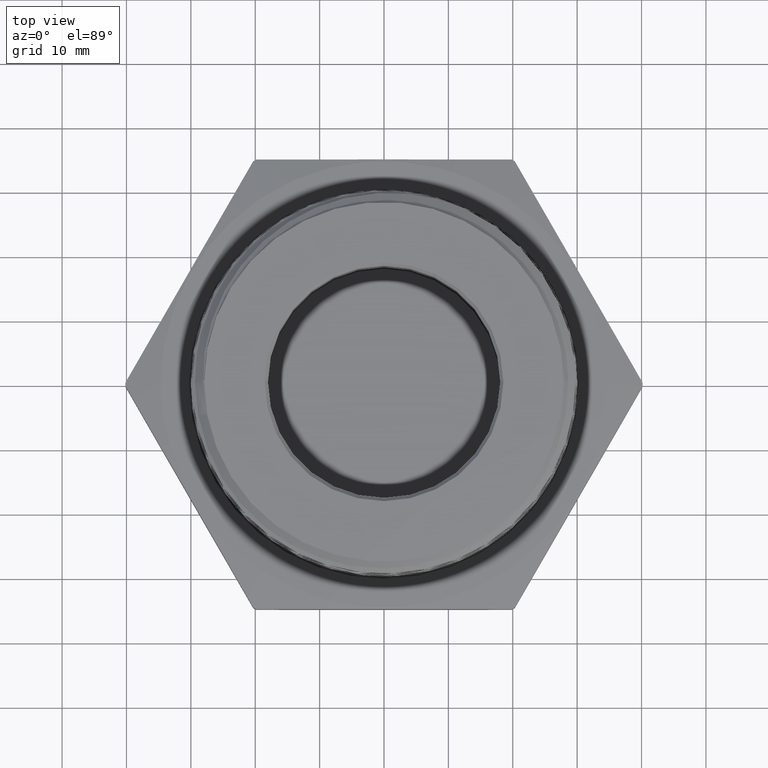
[diagram: clean part render]
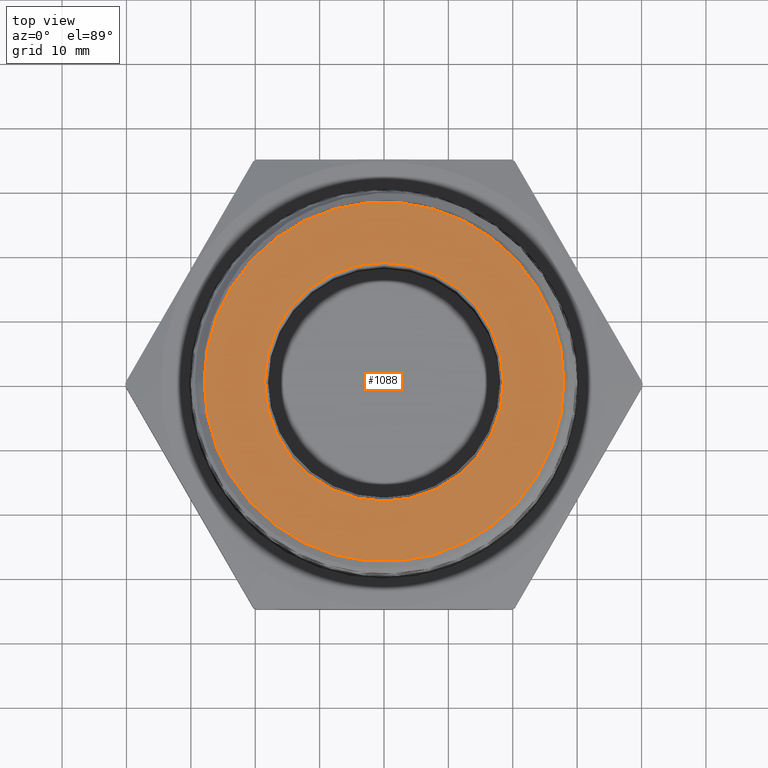
[diagram: same view with one face highlighted and labeled with its STEP entity id]
A machine part, top view. The second image highlights one B-rep face of the part: STEP entity #1088.
In plain terms, the highlighted planar face has unit normal (0, 0, 1).
Its self-contained STEP definition (entity closure, byte-faithful):
#248 = VERTEX_POINT ( 'NONE', #707 ) ;
#254 = VERTEX_POINT ( 'NONE', #713 ) ;
#277 = VERTEX_POINT ( 'NONE', #736 ) ;
#279 = VERTEX_POINT ( 'NONE', #738 ) ;
#409 = CIRCLE ( 'NONE', #1934, 0.7299999999999995400 ) ;
#449 = CIRCLE ( 'NONE', #1954, 1.099700000000000100 ) ;
#451 = CIRCLE ( 'NONE', #1955, 1.099700000000000100 ) ;
#707 = CARTESIAN_POINT ( 'NONE',  ( 1.099700000000000100, 1.381438622983947700E-016, 1.200000000000000000 ) ) ;
#713 = CARTESIAN_POINT ( 'NONE',  ( -1.099700000000000100, 0.0000000000000000000, 1.200000000000000000 ) ) ;
#736 = CARTESIAN_POINT ( 'NONE',  ( 0.7299999999999995400, 0.0000000000000000000, 1.200000000000000000 ) ) ;
#738 = CARTESIAN_POINT ( 'NONE',  ( -0.7299999999999995400, 8.939921633775674600E-017, 1.200000000000000000 ) ) ;
#953 = EDGE_CURVE ( 'NONE', #277, #279, #409, .T. ) ;
#989 = EDGE_CURVE ( 'NONE', #254, #248, #449, .T. ) ;
#994 = EDGE_CURVE ( 'NONE', #248, #254, #451, .T. ) ;
#1088 = ADVANCED_FACE ( 'NONE', ( #7244, #7251 ), #7083, .T. ) ;
#1449 = AXIS2_PLACEMENT_3D ( 'NONE', #7081, #7080, #7085 ) ;
#1460 = AXIS2_PLACEMENT_3D ( 'NONE', #5459, #5460, #5461 ) ;
#1866 = EDGE_CURVE ( 'NONE', #279, #277, #7279, .T. ) ;
#1934 = AXIS2_PLACEMENT_3D ( 'NONE', #7576, #7577, #7578 ) ;
#1954 = AXIS2_PLACEMENT_3D ( 'NONE', #1979, #1980, #1981 ) ;
#1955 = AXIS2_PLACEMENT_3D ( 'NONE', #2050, #2051, #2052 ) ;
#1979 = CARTESIAN_POINT ( 'NONE',  ( 0.0000000000000000000, 0.0000000000000000000, 1.200000000000000000 ) ) ;
#1980 = DIRECTION ( 'NONE',  ( -0.0000000000000000000, -0.0000000000000000000, -1.000000000000000000 ) ) ;
#1981 = DIRECTION ( 'NONE',  ( -1.000000000000000000, 0.0000000000000000000, 0.0000000000000000000 ) ) ;
#2050 = CARTESIAN_POINT ( 'NONE',  ( 0.0000000000000000000, 0.0000000000000000000, 1.200000000000000000 ) ) ;
#2051 = DIRECTION ( 'NONE',  ( -0.0000000000000000000, -0.0000000000000000000, -1.000000000000000000 ) ) ;
#2052 = DIRECTION ( 'NONE',  ( -1.000000000000000000, 0.0000000000000000000, 0.0000000000000000000 ) ) ;
#5459 = CARTESIAN_POINT ( 'NONE',  ( -2.720841177867142100E-018, 0.0000000000000000000, 1.200000000000000000 ) ) ;
#5460 = DIRECTION ( 'NONE',  ( 1.194951895306585200E-017, -0.0000000000000000000, -1.000000000000000000 ) ) ;
#5461 = DIRECTION ( 'NONE',  ( -1.000000000000000000, 0.0000000000000000000, 0.0000000000000000000 ) ) ;
#7080 = DIRECTION ( 'NONE',  ( 0.0000000000000000000, 0.0000000000000000000, 1.000000000000000000 ) ) ;
#7081 = CARTESIAN_POINT ( 'NONE',  ( 0.0000000000000000000, 0.0000000000000000000, 1.200000000000000000 ) ) ;
#7083 = PLANE ( 'NONE',  #1449 ) ;
#7085 = DIRECTION ( 'NONE',  ( 1.000000000000000000, 0.0000000000000000000, -0.0000000000000000000 ) ) ;
#7244 = FACE_BOUND ( 'NONE', #7682, .T. ) ;
#7251 = FACE_OUTER_BOUND ( 'NONE', #7685, .T. ) ;
#7279 = CIRCLE ( 'NONE', #1460, 0.7299999999999995400 ) ;
#7576 = CARTESIAN_POINT ( 'NONE',  ( -2.720841177867142100E-018, 0.0000000000000000000, 1.200000000000000000 ) ) ;
#7577 = DIRECTION ( 'NONE',  ( 1.194951895306585200E-017, -0.0000000000000000000, -1.000000000000000000 ) ) ;
#7578 = DIRECTION ( 'NONE',  ( -1.000000000000000000, 0.0000000000000000000, 0.0000000000000000000 ) ) ;
#7640 = ORIENTED_EDGE ( 'NONE', *, *, #953, .T. ) ;
#7641 = ORIENTED_EDGE ( 'NONE', *, *, #1866, .T. ) ;
#7642 = ORIENTED_EDGE ( 'NONE', *, *, #989, .F. ) ;
#7643 = ORIENTED_EDGE ( 'NONE', *, *, #994, .F. ) ;
#7682 = EDGE_LOOP ( 'NONE', ( #7640, #7641 ) ) ;
#7685 = EDGE_LOOP ( 'NONE', ( #7642, #7643 ) ) ;